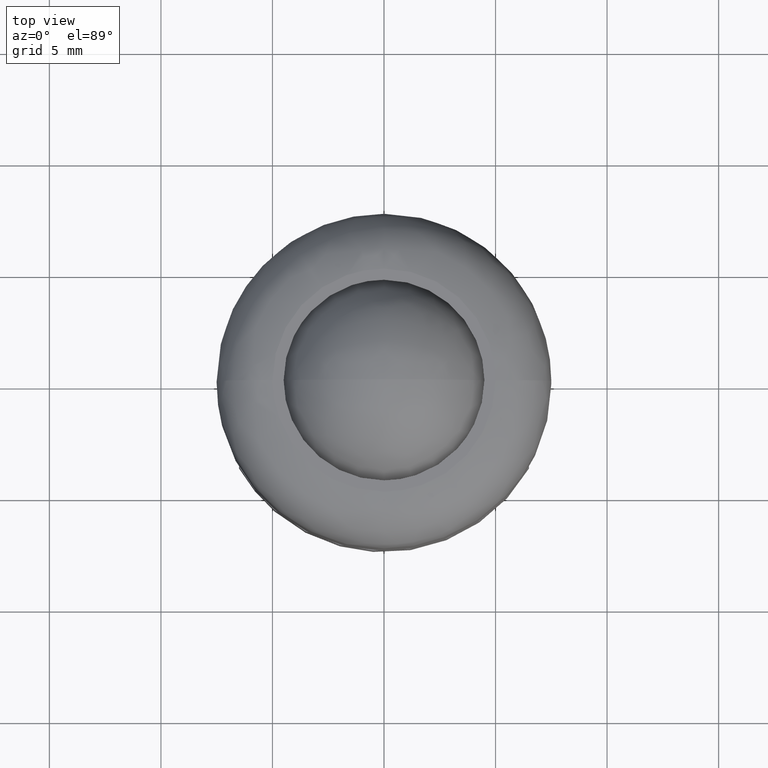
[diagram: clean part render]
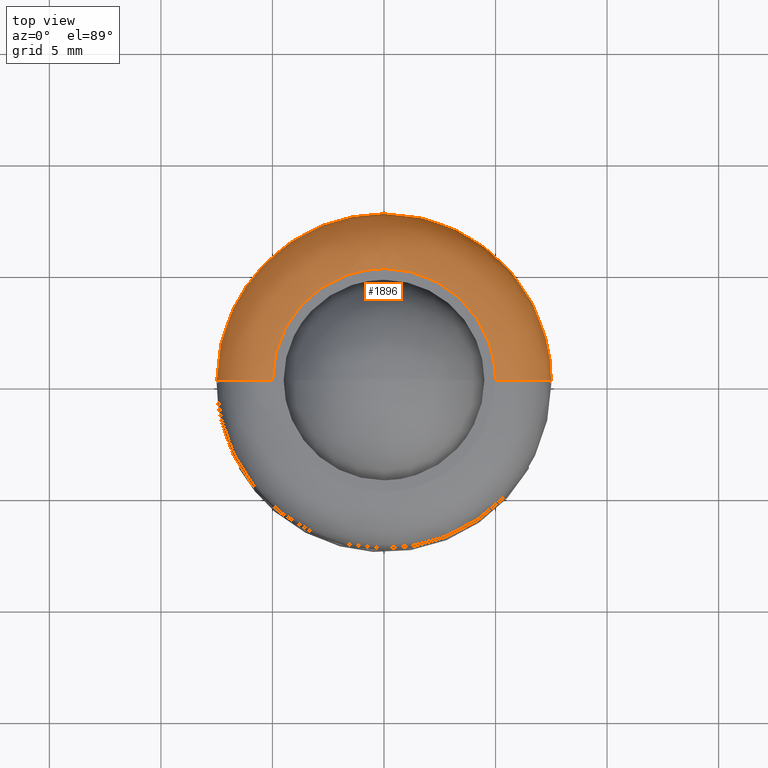
[diagram: same view with one face highlighted and labeled with its STEP entity id]
A machine part, top view. The second image highlights one B-rep face of the part: STEP entity #1896.
In plain terms, the highlighted face is a freeform B-spline surface patch.
Its self-contained STEP definition (entity closure, byte-faithful):
#1663=CARTESIAN_POINT('',(-5.440307722741460,5.162659260906365,6.500000000022540));
#1664=VERTEX_POINT('',#1663);
#1670=CARTESIAN_POINT('',(0.000000330494891,7.499999999999994,6.500000000022540));
#1671=VERTEX_POINT('',#1670);
#1672=CARTESIAN_POINT('',(-5.440307722741460,5.162659260906365,6.500000000022540));
#1673=CARTESIAN_POINT('',(-5.102098629813587,5.519139741139223,6.500000000022533));
#1674=CARTESIAN_POINT('',(-4.403448850131401,6.123550194332288,6.500000000022561));
#1675=CARTESIAN_POINT('',(-3.304947841668540,6.766341252236672,6.500000000022526));
#1676=CARTESIAN_POINT('',(-2.328739788299914,7.149533458199430,6.500000000022563));
#1677=CARTESIAN_POINT('',(-1.252215985891944,7.424943596995743,6.500000000022541));
#1678=CARTESIAN_POINT('',(-0.491390976085444,7.500062434035914,6.500000000022558));
#1679=CARTESIAN_POINT('',(0.000000330494891,7.499999999999994,6.500000000022540));
#1680=B_SPLINE_CURVE_WITH_KNOTS('',3,(#1672,#1673,#1674,#1675,#1676,#1677,#1678,#1679),.UNSPECIFIED.,.F.,.U.,(4,1,1,1,1,4),(4.373165E-009,1.474157996961353,2.758107686477699,3.804278504210336,4.612688308663811,6.086846258987375),.UNSPECIFIED.);
#1681=EDGE_CURVE('',#1664,#1671,#1680,.T.);
#1683=CARTESIAN_POINT('',(7.499999999999998,4.377505E-016,6.500000000022540));
#1684=VERTEX_POINT('',#1683);
#1685=CARTESIAN_POINT('',(0.000000330494891,7.499999999999994,6.500000000022540));
#1686=CARTESIAN_POINT('',(0.383497193046451,7.500026400970749,6.500000000022529));
#1687=CARTESIAN_POINT('',(1.012418787137060,7.451647789277350,6.500000000022558));
#1688=CARTESIAN_POINT('',(1.900044505212940,7.269414662908507,6.500000000022535));
#1689=CARTESIAN_POINT('',(2.793455452394216,6.986419776859995,6.500000000022540));
#1690=CARTESIAN_POINT('',(3.696587333154630,6.555864304557964,6.500000000022578));
#1691=CARTESIAN_POINT('',(4.680553418115937,5.898411715718012,6.500000000022546));
#1692=CARTESIAN_POINT('',(5.497801598165072,5.148542186877860,6.500000000022544));
#1693=CARTESIAN_POINT('',(6.126955182508717,4.352388178186041,6.500000000022534));
#1694=CARTESIAN_POINT('',(6.606903693115212,3.584092095675072,6.500000000022498));
#1695=CARTESIAN_POINT('',(6.964255658195024,2.834503508551272,6.500000000022596));
#1696=CARTESIAN_POINT('',(7.251169677962756,1.974832289148401,6.500000000022420));
#1697=CARTESIAN_POINT('',(7.448113995514327,1.058437192948597,6.500000000022864));
#1698=CARTESIAN_POINT('',(7.500024554799866,0.383494061646091,6.500000000022240));
#1699=CARTESIAN_POINT('',(7.499999999999998,4.377505E-016,6.500000000022540));
#1700=B_SPLINE_CURVE_WITH_KNOTS('',3,(#1685,#1686,#1687,#1688,#1689,#1690,#1691,#1692,#1693,#1694,#1695,#1696,#1697,#1698,#1699),.UNSPECIFIED.,.F.,.U.,(4,1,1,1,1,1,1,1,1,1,1,1,4),(0.000000015616420,1.150486712150414,1.886794533141963,2.715149385215383,3.957676904104491,4.878074433702315,6.258648621754221,7.271079435172505,7.915351142385081,8.973802105752004,9.756134984843094,10.630511099233280,11.780990745615551),.UNSPECIFIED.);
#1701=EDGE_CURVE('',#1671,#1684,#1700,.T.);
#1762=CARTESIAN_POINT('',(-7.499999999999998,-8.755010E-016,6.500000000022541));
#1763=VERTEX_POINT('',#1762);
#1781=CARTESIAN_POINT('',(-7.499999999999998,-8.755010E-016,6.500000000022541));
#1782=CARTESIAN_POINT('',(-7.500077498232605,0.519004555632631,6.500000000022576));
#1783=CARTESIAN_POINT('',(-7.416538542388348,1.319706682978384,6.500000000022483));
#1784=CARTESIAN_POINT('',(-7.122028534528530,2.409367644098278,6.500000000022589));
#1785=CARTESIAN_POINT('',(-6.764389976387481,3.290604567263574,6.500000000022458));
#1786=CARTESIAN_POINT('',(-6.218848827651975,4.245635498818952,6.500000000022707));
#1787=CARTESIAN_POINT('',(-5.736345418461286,4.850752986615080,6.500000000022390));
#1788=CARTESIAN_POINT('',(-5.440307722741460,5.162659260906365,6.500000000022540));
#1789=B_SPLINE_CURVE_WITH_KNOTS('',3,(#1781,#1782,#1783,#1784,#1785,#1786,#1787,#1788),.UNSPECIFIED.,.F.,.U.,(4,1,1,1,1,4),(3.948317E-009,1.556993381656868,2.402218632323688,3.380894656782804,4.404065830071142,5.694145000191802),.UNSPECIFIED.);
#1790=EDGE_CURVE('',#1763,#1664,#1789,.T.);
#1796=CARTESIAN_POINT('',(-4.826623561338354,-0.134936648841680,8.993980876132975));
#1797=CARTESIAN_POINT('',(-4.826623561338354,-0.067861243050946,8.993980876132975));
#1798=CARTESIAN_POINT('',(-4.826623561338356,4.826623561338353,8.993980876132977));
#1799=CARTESIAN_POINT('',(-1.182143E-015,4.826623561338355,8.993980876132977));
#1800=CARTESIAN_POINT('',(4.826623561338353,4.826623561338356,8.993980876132977));
#1801=CARTESIAN_POINT('',(4.826623561338354,-0.067861243050944,8.993980876132975));
#1802=CARTESIAN_POINT('',(4.826623561338354,-0.134936648841679,8.993980876132977));
#1803=CARTESIAN_POINT('',(-7.694348179799923,-0.215108873772495,9.193339213708565));
#1804=CARTESIAN_POINT('',(-7.694348179799922,-0.108180806999421,9.193339213708565));
#1805=CARTESIAN_POINT('',(-7.694348179799923,7.694348179799921,9.193339213708565));
#1806=CARTESIAN_POINT('',(-1.884510E-015,7.694348179799923,9.193339213708565));
#1807=CARTESIAN_POINT('',(7.694348179799921,7.694348179799923,9.193339213708565));
#1808=CARTESIAN_POINT('',(7.694348179799924,-0.108180806999419,9.193339213708565));
#1809=CARTESIAN_POINT('',(7.694348179799925,-0.215108873772493,9.193339213708564));
#1810=CARTESIAN_POINT('',(-7.493915763898146,-0.209505437296183,6.325689465090854));
#1811=CARTESIAN_POINT('',(-7.493915763898146,-0.105362772255683,6.325689465090854));
#1812=CARTESIAN_POINT('',(-7.493915763898147,7.493915763898142,6.325689465090854));
#1813=CARTESIAN_POINT('',(-1.835419E-015,7.493915763898146,6.325689465090854));
#1814=CARTESIAN_POINT('',(7.493915763898142,7.493915763898147,6.325689465090854));
#1815=CARTESIAN_POINT('',(7.493915763898147,-0.105362772255680,6.325689465090854));
#1816=CARTESIAN_POINT('',(7.493915763898146,-0.209505437296182,6.325689465090854));
#1824=(BOUNDED_SURFACE()B_SPLINE_SURFACE(2,2,((#1796,#1803,#1810),(#1797,#1804,#1811),(#1798,#1805,#1812),(#1799,#1806,#1813),(#1800,#1807,#1814),(#1801,#1808,#1815),(#1802,#1809,#1816)),.UNSPECIFIED.,.F.,.F.,.U.)B_SPLINE_SURFACE_WITH_KNOTS((3,1,2,1,3),(3,3),(0.0,0.248326523575052,12.664652702327629,25.080978881080210,25.329305404655258),(0.0,4.556817942492557),.UNSPECIFIED.)GEOMETRIC_REPRESENTATION_ITEM()RATIONAL_B_SPLINE_SURFACE(((0.926697838400259,0.606435486919036,0.921564728292852),(0.921332230155912,0.602924207283492,0.916228840909793),(0.647686209694202,0.423848945870745,0.644098584373797),(0.915966621911565,0.599412927647948,0.910892953526734),(0.647686209694202,0.423848945870745,0.644098584373797),(0.921332230155912,0.602924207283492,0.916228840909793),(0.926697838400259,0.606435486919036,0.921564728292852)))REPRESENTATION_ITEM('')SURFACE());
#1825=CARTESIAN_POINT('',(-5.000000000043314,-5.084947E-016,9.0));
#1826=VERTEX_POINT('',#1825);
#1827=CARTESIAN_POINT('',(-5.000000000043314,-5.084947E-016,9.0));
#1828=CARTESIAN_POINT('',(-5.224992329176110,-6.924742E-016,9.000080637334035));
#1829=CARTESIAN_POINT('',(-5.582875494213345,-9.523436E-016,8.951337225687798));
#1830=CARTESIAN_POINT('',(-6.055138230057533,-1.222869E-015,8.779066954405998));
#1831=CARTESIAN_POINT('',(-6.439172015135716,-1.390911E-015,8.561529512687018));
#1832=CARTESIAN_POINT('',(-6.777271723951792,-1.476503E-015,8.277044831979321));
#1833=CARTESIAN_POINT('',(-7.032968260615376,-1.479138E-015,7.969308538469618));
#1834=CARTESIAN_POINT('',(-7.264137270218628,-1.416569E-015,7.594245561857378));
#1835=CARTESIAN_POINT('',(-7.449528859272108,-1.245753E-015,7.113579769936791));
#1836=CARTESIAN_POINT('',(-7.500049799176263,-1.012717E-015,6.704534012589609));
#1837=CARTESIAN_POINT('',(-7.499999999999998,-8.755010E-016,6.500000000022541));
#1838=B_SPLINE_CURVE_WITH_KNOTS('',3,(#1827,#1828,#1829,#1830,#1831,#1832,#1833,#1834,#1835,#1836,#1837),.UNSPECIFIED.,.F.,.U.,(4,1,1,1,1,1,1,1,4),(0.000000020275698,0.674952275256474,1.073794516320234,1.503313239802686,1.994181803360664,2.393023462445241,2.699820190181744,3.313419622743012,3.927015457151167),.UNSPECIFIED.);
#1839=EDGE_CURVE('',#1826,#1763,#1838,.T.);
#1840=ORIENTED_EDGE('',*,*,#1839,.F.);
#1841=CARTESIAN_POINT('',(0.000000266971305,4.999999999999993,9.0));
#1842=VERTEX_POINT('',#1841);
#1843=CARTESIAN_POINT('',(-5.000000000043314,-5.084947E-016,9.0));
#1844=CARTESIAN_POINT('',(-5.000007890424095,0.224983855463615,8.999999999999991));
#1845=CARTESIAN_POINT('',(-4.968200484025853,0.695402587960306,9.000000000000005));
#1846=CARTESIAN_POINT('',(-4.821664554962340,1.387607833398099,9.0));
#1847=CARTESIAN_POINT('',(-4.545370741286215,2.138025560913845,8.999999999999975));
#1848=CARTESIAN_POINT('',(-4.153367709639184,2.825063642269815,9.000000000000092));
#1849=CARTESIAN_POINT('',(-3.609087681560905,3.492437774499846,8.999999999999831));
#1850=CARTESIAN_POINT('',(-3.055155872228553,3.982246604370579,9.000000000000059));
#1851=CARTESIAN_POINT('',(-2.435665046549815,4.382540348556812,9.000000000000011));
#1852=CARTESIAN_POINT('',(-1.806384525172863,4.682552600585473,8.999999999999986));
#1853=CARTESIAN_POINT('',(-0.981724500014594,4.932713782756722,9.000000000000009));
#1854=CARTESIAN_POINT('',(-0.357933658069401,5.000064999193293,8.999999999999996));
#1855=CARTESIAN_POINT('',(0.000000266971305,4.999999999999993,9.0));
#1856=B_SPLINE_CURVE_WITH_KNOTS('',3,(#1843,#1844,#1845,#1846,#1847,#1848,#1849,#1850,#1851,#1852,#1853,#1854,#1855),.UNSPECIFIED.,.F.,.U.,(4,1,1,1,1,1,1,1,1,1,4),(0.000000019292244,0.674951717166512,1.411264140829999,2.116897929513427,3.067967953989842,3.773601460351227,4.693987596807988,5.276899035328990,5.982535004457304,6.780206915142291,7.853994105105894),.UNSPECIFIED.);
#1857=EDGE_CURVE('',#1826,#1842,#1856,.T.);
#1858=ORIENTED_EDGE('',*,*,#1857,.T.);
#1859=CARTESIAN_POINT('',(5.000000000043314,2.542473E-016,9.0));
#1860=VERTEX_POINT('',#1859);
#1861=CARTESIAN_POINT('',(0.000000266971305,4.999999999999993,9.0));
#1862=CARTESIAN_POINT('',(0.398847000133691,5.000097447966470,9.000000000000036));
#1863=CARTESIAN_POINT('',(0.971481771603780,4.931099698194875,8.999999999999952));
#1864=CARTESIAN_POINT('',(1.785597564812273,4.686847104649864,9.000000000000080));
#1865=CARTESIAN_POINT('',(2.402214956439501,4.406715412632032,8.999999999999872));
#1866=CARTESIAN_POINT('',(3.055177603094580,3.981903376062838,8.999999999999989));
#1867=CARTESIAN_POINT('',(3.591837177801697,3.504441662849950,9.000000000000272));
#1868=CARTESIAN_POINT('',(4.032259571393689,2.977706885986116,8.999999999999732));
#1869=CARTESIAN_POINT('',(4.432611236209945,2.358245260990911,9.000000000000258));
#1870=CARTESIAN_POINT('',(4.715772950643976,1.719437867514450,9.000000000000053));
#1871=CARTESIAN_POINT('',(4.942633655908617,0.889683495762614,8.999999999999830));
#1872=CARTESIAN_POINT('',(5.000069851864605,0.357935572540400,9.000000000000041));
#1873=CARTESIAN_POINT('',(5.000000000043314,2.542473E-016,9.0));
#1874=B_SPLINE_CURVE_WITH_KNOTS('',3,(#1861,#1862,#1863,#1864,#1865,#1866,#1867,#1868,#1869,#1870,#1871,#1872,#1873),.UNSPECIFIED.,.F.,.U.,(4,1,1,1,1,1,1,1,1,1,4),(0.000000019314637,1.196505536072055,1.718061021973401,2.546413241993873,3.221366200386473,4.049703865517047,4.693987416775689,5.276898833070683,6.258651725996133,6.780206655428284,7.853993804166563),.UNSPECIFIED.);
#1875=EDGE_CURVE('',#1842,#1860,#1874,.T.);
#1876=ORIENTED_EDGE('',*,*,#1875,.T.);
#1877=CARTESIAN_POINT('',(5.000000000043314,2.542473E-016,9.0));
#1878=CARTESIAN_POINT('',(5.245452101985463,3.546118E-016,9.000116452010001));
#1879=CARTESIAN_POINT('',(5.644215635422647,4.976983E-016,8.940764261256362));
#1880=CARTESIAN_POINT('',(6.138846654543890,6.323503E-016,8.739407950438555));
#1881=CARTESIAN_POINT('',(6.460775317035456,6.964912E-016,8.538286302981923));
#1882=CARTESIAN_POINT('',(6.768005235246996,7.364632E-016,8.283006973426254));
#1883=CARTESIAN_POINT('',(7.038546529384050,7.431644E-016,7.973230818805604));
#1884=CARTESIAN_POINT('',(7.271120062617587,7.044028E-016,7.574159271657974));
#1885=CARTESIAN_POINT('',(7.449944228324046,6.161790E-016,7.093101489234308));
#1886=CARTESIAN_POINT('',(7.500082113211626,5.132321E-016,6.724992394283261));
#1887=CARTESIAN_POINT('',(7.499999999999998,4.377505E-016,6.500000000022540));
#1888=B_SPLINE_CURVE_WITH_KNOTS('',3,(#1877,#1878,#1879,#1880,#1881,#1882,#1883,#1884,#1885,#1886,#1887),.UNSPECIFIED.,.F.,.U.,(4,1,1,1,1,1,1,1,4),(0.000000020275115,0.736315116080057,1.196515260965232,1.595357382436494,1.871479091350164,2.393023462444814,2.822540813046694,3.252063498900667,3.927015457151164),.UNSPECIFIED.);
#1889=EDGE_CURVE('',#1860,#1684,#1888,.T.);
#1890=ORIENTED_EDGE('',*,*,#1889,.T.);
#1891=ORIENTED_EDGE('',*,*,#1701,.F.);
#1892=ORIENTED_EDGE('',*,*,#1681,.F.);
#1893=ORIENTED_EDGE('',*,*,#1790,.F.);
#1894=EDGE_LOOP('',(#1840,#1858,#1876,#1890,#1891,#1892,#1893));
#1895=FACE_OUTER_BOUND('',#1894,.T.);
#1896=ADVANCED_FACE('',(#1895),#1824,.T.);